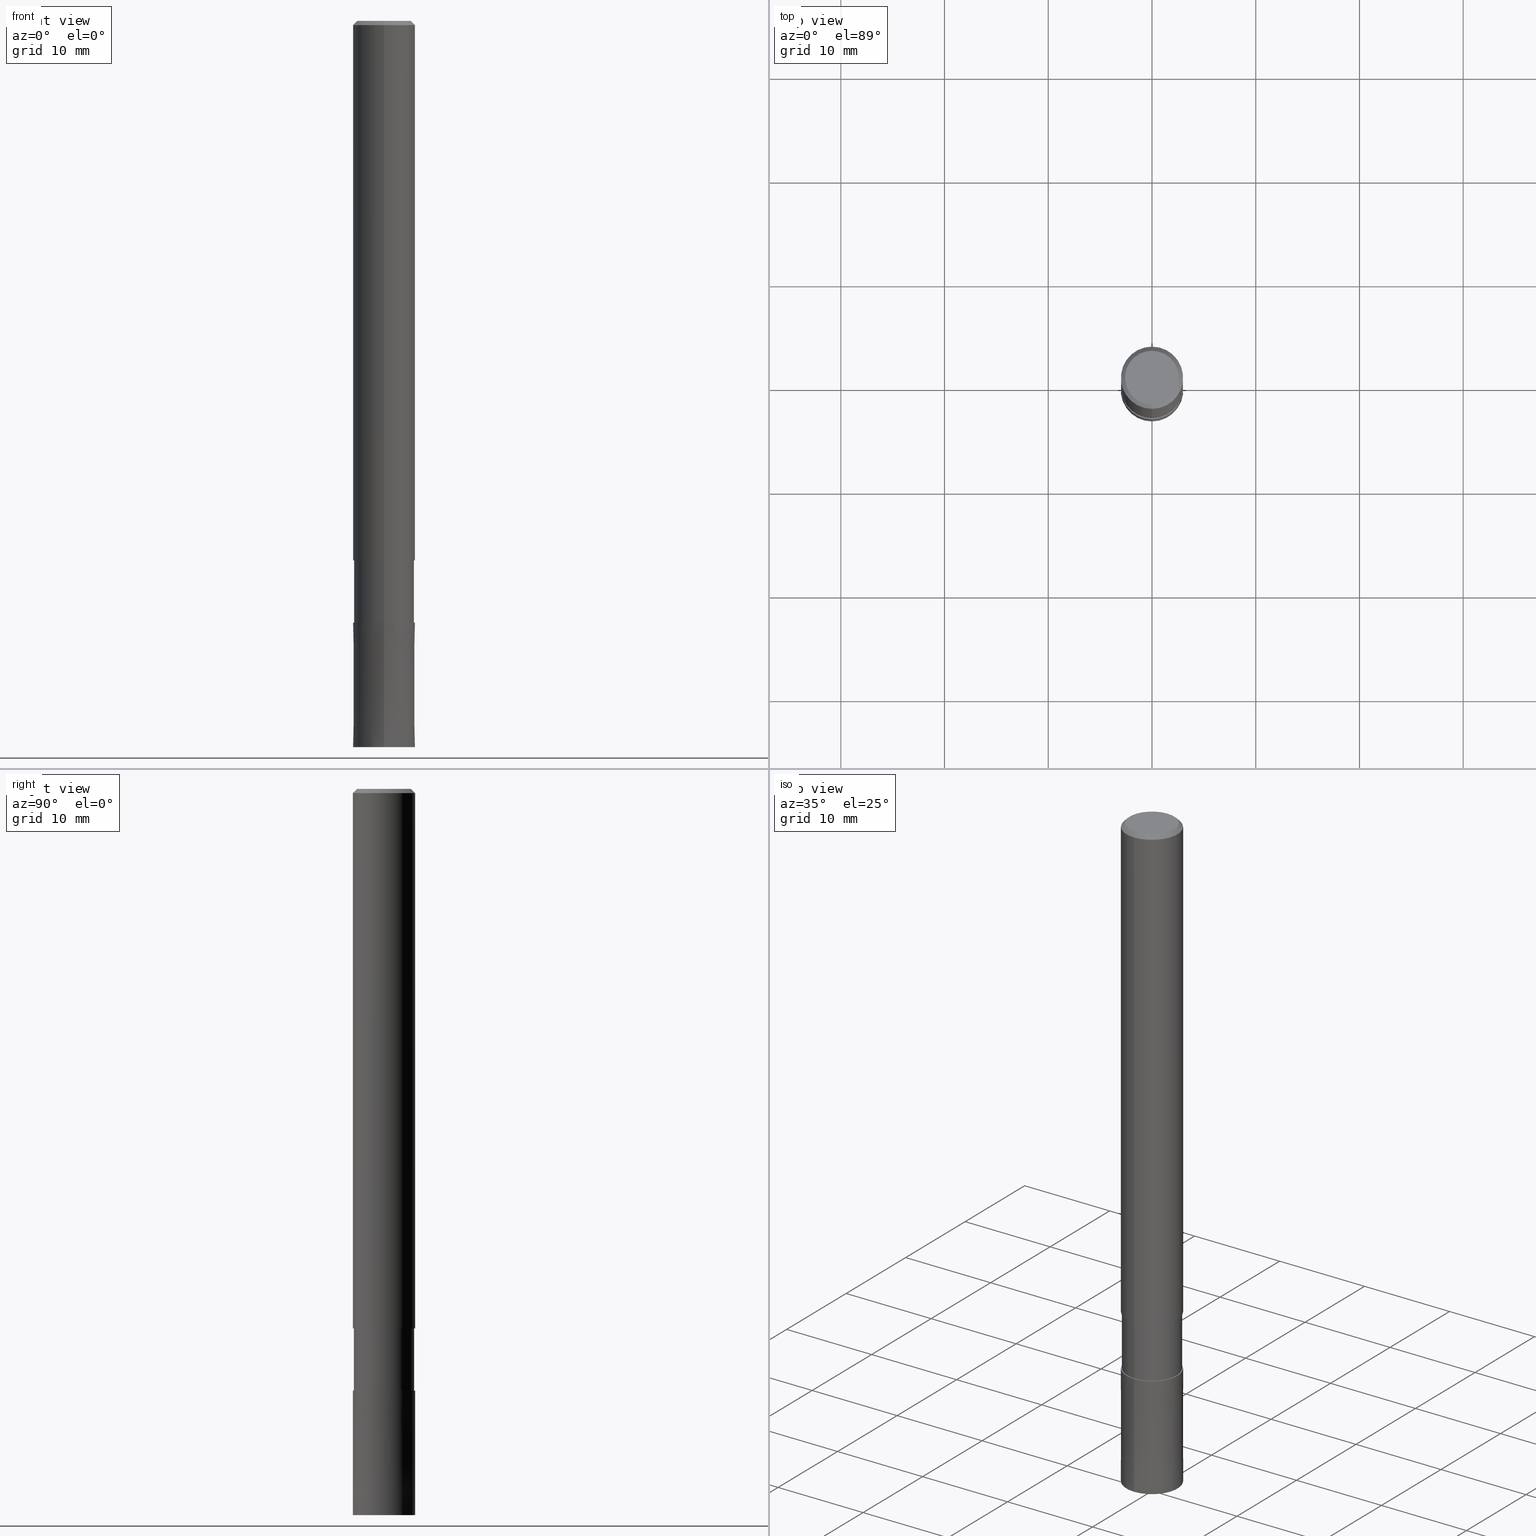
[diagram: canonical four-view strip — front | top / right | iso, engineering-drawing reading convention]
A machine part, canonical four-view strip (front | top / right | iso — engineering-drawing reading convention). The complete STEP part file that produces these views, byte-faithful:
ISO-10303-21;
HEADER;
FILE_DESCRIPTION(('no description'),'unknown implementation level');
FILE_NAME('DLC-AZS3060-180-Huellk.stp','  ',('CIMSOURCE GmbH'),('CADClick - KiM GmbH - www.kimweb.de'),'unknown preprocess','ACIS','unknown authorization');
FILE_SCHEMA(('automotive_design'));
ENDSEC;
DATA;
#1=MECHANICAL_DESIGN_GEOMETRIC_PRESENTATION_REPRESENTATION(' ',(#14,#15,#16,#17,#18,#19,#20,#21,#22,#23,#24,#25,#26,#27,#28,#29,#30,#31,#32,#33,#34,#35,#36,#37,#38,#39,#40,#41,#42,#43,#44,#45,#46,#47,#48,#49,#50,#51,#52,#53,#54,#55,#56,#57,#58,#59,#60,#61,#62,#63,#64),#10);
#2=PRODUCT_DEFINITION_CONTEXT('',#65,'design');
#3=APPLICATION_PROTOCOL_DEFINITION('INTERNATIONAL STANDARD','automotive_design',1994,#65);
#4=PRODUCT_CATEGORY_RELATIONSHIP('NONE','NONE',#66,#67);
#5=SHAPE_DEFINITION_REPRESENTATION(#68,#69);
#6=PRODUCT_DEFINITION_CONTEXT('',#70,'design');
#7=APPLICATION_PROTOCOL_DEFINITION('INTERNATIONAL STANDARD','automotive_design',1994,#70);
#8=PRODUCT_CATEGORY_RELATIONSHIP('NONE','NONE',#71,#72);
#9=SHAPE_DEFINITION_REPRESENTATION(#73,#74);
#10= (GEOMETRIC_REPRESENTATION_CONTEXT(3)GLOBAL_UNCERTAINTY_ASSIGNED_CONTEXT((#77))GLOBAL_UNIT_ASSIGNED_CONTEXT((#79,#80,#81))REPRESENTATION_CONTEXT('NONE','WORKSPACE'));
#14=STYLED_ITEM('',(#83),#84);
#15=STYLED_ITEM('',(#85),#86);
#16=STYLED_ITEM('',(#87),#88);
#17=STYLED_ITEM('',(#89),#90);
#18=STYLED_ITEM('',(#91),#92);
#19=STYLED_ITEM('',(#93),#94);
#20=STYLED_ITEM('',(#95),#96);
#21=STYLED_ITEM('',(#97),#98);
#22=STYLED_ITEM('',(#99),#100);
#23=STYLED_ITEM('',(#101),#102);
#24=STYLED_ITEM('',(#103),#104);
#25=STYLED_ITEM('',(#105),#106);
#26=STYLED_ITEM('',(#107),#108);
#27=STYLED_ITEM('',(#109),#110);
#28=STYLED_ITEM('',(#111),#112);
#29=STYLED_ITEM('',(#113),#114);
#30=STYLED_ITEM('',(#115),#116);
#31=STYLED_ITEM('',(#117),#118);
#32=STYLED_ITEM('',(#119),#120);
#33=STYLED_ITEM('',(#121),#122);
#34=STYLED_ITEM('',(#123),#124);
#35=STYLED_ITEM('',(#125),#126);
#36=STYLED_ITEM('',(#127),#128);
#37=STYLED_ITEM('',(#129),#130);
#38=STYLED_ITEM('',(#131),#132);
#39=STYLED_ITEM('',(#133),#134);
#40=STYLED_ITEM('',(#135),#136);
#41=STYLED_ITEM('',(#137),#138);
#42=STYLED_ITEM('',(#139),#140);
#43=STYLED_ITEM('',(#141),#142);
#44=STYLED_ITEM('',(#143),#144);
#45=STYLED_ITEM('',(#145),#146);
#46=STYLED_ITEM('',(#147),#148);
#47=STYLED_ITEM('',(#149),#150);
#48=STYLED_ITEM('',(#151),#152);
#49=STYLED_ITEM('',(#153),#154);
#50=STYLED_ITEM('',(#155),#156);
#51=STYLED_ITEM('',(#157),#158);
#52=STYLED_ITEM('',(#159),#160);
#53=STYLED_ITEM('',(#161),#162);
#54=STYLED_ITEM('',(#163),#164);
#55=STYLED_ITEM('',(#165),#166);
#56=STYLED_ITEM('',(#167),#168);
#57=STYLED_ITEM('',(#169),#170);
#58=STYLED_ITEM('',(#171),#172);
#59=STYLED_ITEM('',(#173),#174);
#60=STYLED_ITEM('',(#175),#176);
#61=STYLED_ITEM('',(#177),#178);
#62=STYLED_ITEM('',(#179),#180);
#63=STYLED_ITEM('',(#181),#182);
#64=STYLED_ITEM('',(#183),#184);
#65=APPLICATION_CONTEXT(' ');
#66=PRODUCT_CATEGORY('part','NONE');
#67=PRODUCT_RELATED_PRODUCT_CATEGORY('detail',' ',(#185));
#68=PRODUCT_DEFINITION_SHAPE('NONE','NONE',#186);
#69=ADVANCED_BREP_SHAPE_REPRESENTATION('1',(#182,#187),#10);
#70=APPLICATION_CONTEXT(' ');
#71=PRODUCT_CATEGORY('part','NONE');
#72=PRODUCT_RELATED_PRODUCT_CATEGORY('detail',' ',(#188));
#73=PRODUCT_DEFINITION_SHAPE('NONE','NONE',#189);
#74=ADVANCED_BREP_SHAPE_REPRESENTATION('2',(#178,#190),#10);
#77=UNCERTAINTY_MEASURE_WITH_UNIT(LENGTH_MEASURE(1.0E-006),#79,'','');
#79= (CONVERSION_BASED_UNIT('MILLIMETRE',#193)LENGTH_UNIT()NAMED_UNIT(#196));
#80= (NAMED_UNIT(#198)PLANE_ANGLE_UNIT()SI_UNIT($,.RADIAN.));
#81= (NAMED_UNIT(#198)SOLID_ANGLE_UNIT()SI_UNIT($,.STERADIAN.));
#83=PRESENTATION_STYLE_ASSIGNMENT((#204));
#84=EDGE_CURVE('',#102,#168,#205,.T.);
#85=PRESENTATION_STYLE_ASSIGNMENT((#206));
#86=ADVANCED_FACE('',(#207),#208,.T.);
#87=PRESENTATION_STYLE_ASSIGNMENT((#209));
#88=ADVANCED_FACE('',(#210),#211,.T.);
#89=PRESENTATION_STYLE_ASSIGNMENT((#212));
#90=ADVANCED_FACE('',(#213),#214,.T.);
#91=PRESENTATION_STYLE_ASSIGNMENT((#215));
#92=EDGE_CURVE('',#176,#142,#216,.T.);
#93=PRESENTATION_STYLE_ASSIGNMENT((#217));
#94=EDGE_CURVE('',#118,#140,#218,.T.);
#95=PRESENTATION_STYLE_ASSIGNMENT((#219));
#96=EDGE_CURVE('',#110,#134,#220,.T.);
#97=PRESENTATION_STYLE_ASSIGNMENT((#221));
#98=EDGE_CURVE('',#140,#118,#222,.T.);
#99=PRESENTATION_STYLE_ASSIGNMENT((#223));
#100=ADVANCED_FACE('',(#224),#225,.T.);
#101=PRESENTATION_STYLE_ASSIGNMENT((#226));
#102=VERTEX_POINT('',#227);
#103=PRESENTATION_STYLE_ASSIGNMENT((#228));
#104=EDGE_CURVE('',#168,#102,#229,.T.);
#105=PRESENTATION_STYLE_ASSIGNMENT((#230));
#106=ADVANCED_FACE('',(#231),#232,.T.);
#107=PRESENTATION_STYLE_ASSIGNMENT((#233));
#108=VERTEX_POINT('',#234);
#109=PRESENTATION_STYLE_ASSIGNMENT((#235));
#110=VERTEX_POINT('',#236);
#111=PRESENTATION_STYLE_ASSIGNMENT((#237));
#112=ADVANCED_FACE('',(#238),#239,.T.);
#113=PRESENTATION_STYLE_ASSIGNMENT((#240));
#114=EDGE_CURVE('',#108,#176,#241,.T.);
#115=PRESENTATION_STYLE_ASSIGNMENT((#242));
#116=EDGE_CURVE('',#180,#108,#243,.T.);
#117=PRESENTATION_STYLE_ASSIGNMENT((#244));
#118=VERTEX_POINT('',#245);
#119=PRESENTATION_STYLE_ASSIGNMENT((#246));
#120=EDGE_CURVE('',#118,#134,#247,.T.);
#121=PRESENTATION_STYLE_ASSIGNMENT((#248));
#122=VERTEX_POINT('',#249);
#123=PRESENTATION_STYLE_ASSIGNMENT((#250));
#124=EDGE_CURVE('',#134,#110,#251,.T.);
#125=PRESENTATION_STYLE_ASSIGNMENT((#252));
#126=EDGE_CURVE('',#108,#180,#253,.T.);
#127=PRESENTATION_STYLE_ASSIGNMENT((#254));
#128=ADVANCED_FACE('',(#255),#256,.T.);
#129=PRESENTATION_STYLE_ASSIGNMENT((#257));
#130=VERTEX_POINT('',#258);
#131=PRESENTATION_STYLE_ASSIGNMENT((#259));
#132=EDGE_CURVE('',#154,#146,#260,.T.);
#133=PRESENTATION_STYLE_ASSIGNMENT((#261));
#134=VERTEX_POINT('',#262);
#135=PRESENTATION_STYLE_ASSIGNMENT((#263));
#136=EDGE_CURVE('',#142,#180,#264,.T.);
#137=PRESENTATION_STYLE_ASSIGNMENT((#265));
#138=EDGE_CURVE('',#146,#102,#266,.T.);
#139=PRESENTATION_STYLE_ASSIGNMENT((#267));
#140=VERTEX_POINT('',#268);
#141=PRESENTATION_STYLE_ASSIGNMENT((#269));
#142=VERTEX_POINT('',#270);
#143=PRESENTATION_STYLE_ASSIGNMENT((#271));
#144=ADVANCED_FACE('',(#272),#273,.T.);
#145=PRESENTATION_STYLE_ASSIGNMENT((#274));
#146=VERTEX_POINT('',#275);
#147=PRESENTATION_STYLE_ASSIGNMENT((#276));
#148=EDGE_CURVE('',#110,#140,#277,.T.);
#149=PRESENTATION_STYLE_ASSIGNMENT((#278));
#150=ADVANCED_FACE('',(#279,#280),#281,.T.);
#151=PRESENTATION_STYLE_ASSIGNMENT((#282));
#152=ADVANCED_FACE('',(#283),#284,.T.);
#153=PRESENTATION_STYLE_ASSIGNMENT((#285));
#154=VERTEX_POINT('',#286);
#155=PRESENTATION_STYLE_ASSIGNMENT((#287));
#156=EDGE_CURVE('',#168,#154,#288,.T.);
#157=PRESENTATION_STYLE_ASSIGNMENT((#289));
#158=ADVANCED_FACE('',(#290),#291,.T.);
#159=PRESENTATION_STYLE_ASSIGNMENT((#292));
#160=EDGE_CURVE('',#130,#110,#293,.T.);
#161=PRESENTATION_STYLE_ASSIGNMENT((#294));
#162=EDGE_CURVE('',#130,#122,#295,.T.);
#163=PRESENTATION_STYLE_ASSIGNMENT((#296));
#164=EDGE_CURVE('',#122,#130,#297,.T.);
#165=PRESENTATION_STYLE_ASSIGNMENT((#298));
#166=ADVANCED_FACE('',(#299),#300,.T.);
#167=PRESENTATION_STYLE_ASSIGNMENT((#301));
#168=VERTEX_POINT('',#302);
#169=PRESENTATION_STYLE_ASSIGNMENT((#303));
#170=ADVANCED_FACE('',(#304),#305,.T.);
#171=PRESENTATION_STYLE_ASSIGNMENT((#306));
#172=EDGE_CURVE('',#146,#154,#307,.T.);
#173=PRESENTATION_STYLE_ASSIGNMENT((#308));
#174=EDGE_CURVE('',#134,#122,#309,.T.);
#175=PRESENTATION_STYLE_ASSIGNMENT((#310));
#176=VERTEX_POINT('',#311);
#177=PRESENTATION_STYLE_ASSIGNMENT((#312));
#178=MANIFOLD_SOLID_BREP('2',#313);
#179=PRESENTATION_STYLE_ASSIGNMENT((#314));
#180=VERTEX_POINT('',#315);
#181=PRESENTATION_STYLE_ASSIGNMENT((#316));
#182=MANIFOLD_SOLID_BREP('1',#317);
#183=PRESENTATION_STYLE_ASSIGNMENT((#318));
#184=EDGE_CURVE('',#142,#176,#319,.T.);
#185=PRODUCT('1','1','PART-1-DESC',(#320));
#186=PRODUCT_DEFINITION('NONE','NONE',#321,#2);
#187=AXIS2_PLACEMENT_3D('',#322,#323,#324);
#188=PRODUCT('2','2','PART-2-DESC',(#325));
#189=PRODUCT_DEFINITION('NONE','NONE',#326,#6);
#190=AXIS2_PLACEMENT_3D('',#327,#328,#329);
#193=LENGTH_MEASURE_WITH_UNIT(LENGTH_MEASURE(1.0),#330);
#196=DIMENSIONAL_EXPONENTS(1.0,0.0,0.0,0.0,0.0,0.0,0.0);
#198=DIMENSIONAL_EXPONENTS(0.0,0.0,0.0,0.0,0.0,0.0,0.0);
#204=CURVE_STYLE('',#331,POSITIVE_LENGTH_MEASURE(1.0E-006),#332);
#205=CIRCLE('',#333,2.89995);
#206=SURFACE_STYLE_USAGE(.BOTH.,#334);
#207=FACE_OUTER_BOUND('',#335,.T.);
#208=CYLINDRICAL_SURFACE('',#336,2.89995);
#209=SURFACE_STYLE_USAGE(.BOTH.,#337);
#210=FACE_OUTER_BOUND('',#338,.T.);
#211=CONICAL_SURFACE('',#339,2.8,0.78539816339745);
#212=SURFACE_STYLE_USAGE(.BOTH.,#340);
#213=FACE_OUTER_BOUND('',#341,.T.);
#214=PLANE('',#342);
#215=CURVE_STYLE('',#343,POSITIVE_LENGTH_MEASURE(1.0E-006),#344);
#216=CIRCLE('',#345,2.9999);
#217=CURVE_STYLE('',#346,POSITIVE_LENGTH_MEASURE(1.0E-006),#347);
#218=CIRCLE('',#348,3.0);
#219=CURVE_STYLE('',#349,POSITIVE_LENGTH_MEASURE(1.0E-006),#350);
#220=CIRCLE('',#351,3.0);
#221=CURVE_STYLE('',#352,POSITIVE_LENGTH_MEASURE(1.0E-006),#353);
#222=CIRCLE('',#354,3.0);
#223=SURFACE_STYLE_USAGE(.BOTH.,#355);
#224=FACE_OUTER_BOUND('',#356,.T.);
#225=CONICAL_SURFACE('',#357,2.99995,8.33333333315802E-006);
#226=POINT_STYLE(' ',#358,POSITIVE_LENGTH_MEASURE(1.0E-006),#359);
#227=CARTESIAN_POINT('',(0.0,2.89995,-58.0));
#228=CURVE_STYLE('',#360,POSITIVE_LENGTH_MEASURE(1.0E-006),#361);
#229=CIRCLE('',#362,2.89995);
#230=SURFACE_STYLE_USAGE(.BOTH.,#363);
#231=FACE_OUTER_BOUND('',#364,.T.);
#232=PLANE('',#365);
#233=POINT_STYLE(' ',#366,POSITIVE_LENGTH_MEASURE(1.0E-006),#367);
#234=CARTESIAN_POINT('',(3.67381906146713E-016,-3.0,-70.0));
#235=POINT_STYLE(' ',#368,POSITIVE_LENGTH_MEASURE(1.0E-006),#369);
#236=CARTESIAN_POINT('',(0.0,3.0,-0.399999999999999));
#237=SURFACE_STYLE_USAGE(.BOTH.,#370);
#238=FACE_OUTER_BOUND('',#371,.T.);
#239=CYLINDRICAL_SURFACE('',#372,3.0);
#240=CURVE_STYLE('',#373,POSITIVE_LENGTH_MEASURE(1.0E-006),#374);
#241=LINE('',#375,#376);
#242=CURVE_STYLE('',#377,POSITIVE_LENGTH_MEASURE(1.0E-006),#378);
#243=CIRCLE('',#379,3.0);
#244=POINT_STYLE(' ',#380,POSITIVE_LENGTH_MEASURE(1.0E-006),#381);
#245=CARTESIAN_POINT('',(3.67381906146713E-016,-3.0,-52.0));
#246=CURVE_STYLE('',#382,POSITIVE_LENGTH_MEASURE(1.0E-006),#383);
#247=LINE('',#384,#385);
#248=POINT_STYLE(' ',#386,POSITIVE_LENGTH_MEASURE(1.0E-006),#387);
#249=CARTESIAN_POINT('',(3.18397651993818E-016,-2.6,0.0));
#250=CURVE_STYLE('',#388,POSITIVE_LENGTH_MEASURE(1.0E-006),#389);
#251=CIRCLE('',#390,3.0);
#252=CURVE_STYLE('',#391,POSITIVE_LENGTH_MEASURE(1.0E-006),#392);
#253=CIRCLE('',#393,3.0);
#254=SURFACE_STYLE_USAGE(.BOTH.,#394);
#255=FACE_OUTER_BOUND('',#395,.T.);
#256=CYLINDRICAL_SURFACE('',#396,2.89995);
#257=POINT_STYLE(' ',#397,POSITIVE_LENGTH_MEASURE(1.0E-006),#398);
#258=CARTESIAN_POINT('',(0.0,2.6,0.0));
#259=CURVE_STYLE('',#399,POSITIVE_LENGTH_MEASURE(1.0E-006),#400);
#260=CIRCLE('',#401,2.89995);
#261=POINT_STYLE(' ',#402,POSITIVE_LENGTH_MEASURE(1.0E-006),#403);
#262=CARTESIAN_POINT('',(3.67381906146713E-016,-3.0,-0.399999999999999));
#263=CURVE_STYLE('',#404,POSITIVE_LENGTH_MEASURE(1.0E-006),#405);
#264=LINE('',#406,#407);
#265=CURVE_STYLE('',#408,POSITIVE_LENGTH_MEASURE(1.0E-006),#409);
#266=LINE('',#410,#411);
#267=POINT_STYLE(' ',#412,POSITIVE_LENGTH_MEASURE(1.0E-006),#413);
#268=CARTESIAN_POINT('',(0.0,3.0,-52.0));
#269=POINT_STYLE(' ',#414,POSITIVE_LENGTH_MEASURE(1.0E-006),#415);
#270=CARTESIAN_POINT('',(0.0,2.9999,-58.0));
#271=SURFACE_STYLE_USAGE(.BOTH.,#416);
#272=FACE_OUTER_BOUND('',#417,.T.);
#273=CYLINDRICAL_SURFACE('',#418,3.0);
#274=POINT_STYLE(' ',#419,POSITIVE_LENGTH_MEASURE(1.0E-006),#420);
#275=CARTESIAN_POINT('',(0.0,2.89995,-52.0));
#276=CURVE_STYLE('',#421,POSITIVE_LENGTH_MEASURE(1.0E-006),#422);
#277=LINE('',#423,#424);
#278=SURFACE_STYLE_USAGE(.BOTH.,#425);
#279=FACE_OUTER_BOUND('',#426,.T.);
#280=FACE_BOUND('',#427,.T.);
#281=PLANE('',#428);
#282=SURFACE_STYLE_USAGE(.BOTH.,#429);
#283=FACE_OUTER_BOUND('',#430,.T.);
#284=PLANE('',#431);
#285=POINT_STYLE(' ',#432,POSITIVE_LENGTH_MEASURE(1.0E-006),#433);
#286=CARTESIAN_POINT('',(3.5512971957672E-016,-2.89995,-52.0));
#287=CURVE_STYLE('',#434,POSITIVE_LENGTH_MEASURE(1.0E-006),#435);
#288=LINE('',#436,#437);
#289=SURFACE_STYLE_USAGE(.BOTH.,#438);
#290=FACE_OUTER_BOUND('',#439,.T.);
#291=CONICAL_SURFACE('',#440,2.8,0.78539816339745);
#292=CURVE_STYLE('',#441,POSITIVE_LENGTH_MEASURE(1.0E-006),#442);
#293=LINE('',#443,#444);
#294=CURVE_STYLE('',#445,POSITIVE_LENGTH_MEASURE(1.0E-006),#446);
#295=CIRCLE('',#447,2.6);
#296=CURVE_STYLE('',#448,POSITIVE_LENGTH_MEASURE(1.0E-006),#449);
#297=CIRCLE('',#450,2.6);
#298=SURFACE_STYLE_USAGE(.BOTH.,#451);
#299=FACE_OUTER_BOUND('',#452,.T.);
#300=CONICAL_SURFACE('',#453,2.99995,8.33333333315802E-006);
#301=POINT_STYLE(' ',#454,POSITIVE_LENGTH_MEASURE(1.0E-006),#455);
#302=CARTESIAN_POINT('',(3.5512971957672E-016,-2.89995,-58.0));
#303=SURFACE_STYLE_USAGE(.BOTH.,#456);
#304=FACE_OUTER_BOUND('',#457,.T.);
#305=PLANE('',#458);
#306=CURVE_STYLE('',#459,POSITIVE_LENGTH_MEASURE(1.0E-006),#460);
#307=CIRCLE('',#461,2.89995);
#308=CURVE_STYLE('',#462,POSITIVE_LENGTH_MEASURE(1.0E-006),#463);
#309=LINE('',#464,#465);
#310=POINT_STYLE(' ',#466,POSITIVE_LENGTH_MEASURE(1.0E-006),#467);
#311=CARTESIAN_POINT('',(3.67369660083175E-016,-2.9999,-58.0));
#312=SURFACE_STYLE_USAGE(.BOTH.,#468);
#313=CLOSED_SHELL('',(#100,#170,#166,#106));
#314=POINT_STYLE(' ',#469,POSITIVE_LENGTH_MEASURE(1.0E-006),#470);
#315=CARTESIAN_POINT('',(0.0,3.0,-70.0));
#316=SURFACE_STYLE_USAGE(.BOTH.,#471);
#317=CLOSED_SHELL('',(#86,#144,#88,#150,#90,#158,#112,#128,#152));
#318=CURVE_STYLE('',#472,POSITIVE_LENGTH_MEASURE(1.0E-006),#473);
#319=CIRCLE('',#474,2.9999);
#320=PRODUCT_CONTEXT('',#65,'mechanical');
#321=PRODUCT_DEFINITION_FORMATION_WITH_SPECIFIED_SOURCE(' ','NONE',#185,.NOT_KNOWN.);
#322=CARTESIAN_POINT('',(0.0,0.0,0.0));
#323=DIRECTION('',(0.0,0.0,1.0));
#324=DIRECTION('',(1.0,0.0,0.0));
#325=PRODUCT_CONTEXT('',#70,'mechanical');
#326=PRODUCT_DEFINITION_FORMATION_WITH_SPECIFIED_SOURCE(' ','NONE',#188,.NOT_KNOWN.);
#327=CARTESIAN_POINT('',(0.0,0.0,0.0));
#328=DIRECTION('',(0.0,0.0,1.0));
#329=DIRECTION('',(1.0,0.0,0.0));
#330= (NAMED_UNIT(#196)LENGTH_UNIT()SI_UNIT(.MILLI.,.METRE.));
#331=DRAUGHTING_PRE_DEFINED_CURVE_FONT('continuous');
#332=COLOUR_RGB('',0.498039215803146,0.498039215803146,0.498039215803146);
#333=AXIS2_PLACEMENT_3D('',#476,#477,#478);
#334=SURFACE_SIDE_STYLE('',(#479));
#335=EDGE_LOOP('',(#480,#481,#482,#483));
#336=AXIS2_PLACEMENT_3D('',#484,#485,#486);
#337=SURFACE_SIDE_STYLE('',(#487));
#338=EDGE_LOOP('',(#488,#489,#490,#491));
#339=AXIS2_PLACEMENT_3D('',#492,#493,#494);
#340=SURFACE_SIDE_STYLE('',(#495));
#341=EDGE_LOOP('',(#496,#497));
#342=AXIS2_PLACEMENT_3D('',#498,#499,#500);
#343=DRAUGHTING_PRE_DEFINED_CURVE_FONT('continuous');
#344=COLOUR_RGB('',0.800000011920929,0.800000011920929,0.800000011920929);
#345=AXIS2_PLACEMENT_3D('',#501,#502,#503);
#346=DRAUGHTING_PRE_DEFINED_CURVE_FONT('continuous');
#347=COLOUR_RGB('',0.498039215803146,0.498039215803146,0.498039215803146);
#348=AXIS2_PLACEMENT_3D('',#504,#505,#506);
#349=DRAUGHTING_PRE_DEFINED_CURVE_FONT('continuous');
#350=COLOUR_RGB('',0.498039215803146,0.498039215803146,0.498039215803146);
#351=AXIS2_PLACEMENT_3D('',#507,#508,#509);
#352=DRAUGHTING_PRE_DEFINED_CURVE_FONT('continuous');
#353=COLOUR_RGB('',0.498039215803146,0.498039215803146,0.498039215803146);
#354=AXIS2_PLACEMENT_3D('',#510,#511,#512);
#355=SURFACE_SIDE_STYLE('',(#513));
#356=EDGE_LOOP('',(#514,#515,#516,#517));
#357=AXIS2_PLACEMENT_3D('',#518,#519,#520);
#358=PRE_DEFINED_MARKER('');
#359=COLOUR_RGB('',0.498039215803146,0.498039215803146,0.498039215803146);
#360=DRAUGHTING_PRE_DEFINED_CURVE_FONT('continuous');
#361=COLOUR_RGB('',0.498039215803146,0.498039215803146,0.498039215803146);
#362=AXIS2_PLACEMENT_3D('',#521,#522,#523);
#363=SURFACE_SIDE_STYLE('',(#524));
#364=EDGE_LOOP('',(#525,#526));
#365=AXIS2_PLACEMENT_3D('',#527,#528,#529);
#366=PRE_DEFINED_MARKER('');
#367=COLOUR_RGB('',0.800000011920929,0.800000011920929,0.800000011920929);
#368=PRE_DEFINED_MARKER('');
#369=COLOUR_RGB('',0.498039215803146,0.498039215803146,0.498039215803146);
#370=SURFACE_SIDE_STYLE('',(#530));
#371=EDGE_LOOP('',(#531,#532,#533,#534));
#372=AXIS2_PLACEMENT_3D('',#535,#536,#537);
#373=DRAUGHTING_PRE_DEFINED_CURVE_FONT('continuous');
#374=COLOUR_RGB('',0.800000011920929,0.800000011920929,0.800000011920929);
#375=CARTESIAN_POINT('',(3.67375783114944E-016,-2.99995,-64.0));
#376=VECTOR('',#538,1.0);
#377=DRAUGHTING_PRE_DEFINED_CURVE_FONT('continuous');
#378=COLOUR_RGB('',0.800000011920929,0.800000011920929,0.800000011920929);
#379=AXIS2_PLACEMENT_3D('',#539,#540,#541);
#380=PRE_DEFINED_MARKER('');
#381=COLOUR_RGB('',0.498039215803146,0.498039215803146,0.498039215803146);
#382=DRAUGHTING_PRE_DEFINED_CURVE_FONT('continuous');
#383=COLOUR_RGB('',0.498039215803146,0.498039215803146,0.498039215803146);
#384=CARTESIAN_POINT('',(3.67381906146713E-016,-3.0,-26.2));
#385=VECTOR('',#542,1.0);
#386=PRE_DEFINED_MARKER('');
#387=COLOUR_RGB('',0.498039215803146,0.498039215803146,0.498039215803146);
#388=DRAUGHTING_PRE_DEFINED_CURVE_FONT('continuous');
#389=COLOUR_RGB('',0.498039215803146,0.498039215803146,0.498039215803146);
#390=AXIS2_PLACEMENT_3D('',#543,#544,#545);
#391=DRAUGHTING_PRE_DEFINED_CURVE_FONT('continuous');
#392=COLOUR_RGB('',0.800000011920929,0.800000011920929,0.800000011920929);
#393=AXIS2_PLACEMENT_3D('',#546,#547,#548);
#394=SURFACE_SIDE_STYLE('',(#549));
#395=EDGE_LOOP('',(#550,#551,#552,#553));
#396=AXIS2_PLACEMENT_3D('',#554,#555,#556);
#397=PRE_DEFINED_MARKER('');
#398=COLOUR_RGB('',0.498039215803146,0.498039215803146,0.498039215803146);
#399=DRAUGHTING_PRE_DEFINED_CURVE_FONT('continuous');
#400=COLOUR_RGB('',0.498039215803146,0.498039215803146,0.498039215803146);
#401=AXIS2_PLACEMENT_3D('',#557,#558,#559);
#402=PRE_DEFINED_MARKER('');
#403=COLOUR_RGB('',0.498039215803146,0.498039215803146,0.498039215803146);
#404=DRAUGHTING_PRE_DEFINED_CURVE_FONT('continuous');
#405=COLOUR_RGB('',0.800000011920929,0.800000011920929,0.800000011920929);
#406=CARTESIAN_POINT('',(-3.67375783114944E-016,2.99995,-64.0));
#407=VECTOR('',#560,1.0);
#408=DRAUGHTING_PRE_DEFINED_CURVE_FONT('continuous');
#409=COLOUR_RGB('',0.498039215803146,0.498039215803146,0.498039215803146);
#410=CARTESIAN_POINT('',(-3.5512971957672E-016,2.89995,-55.0));
#411=VECTOR('',#561,1.0);
#412=PRE_DEFINED_MARKER('');
#413=COLOUR_RGB('',0.498039215803146,0.498039215803146,0.498039215803146);
#414=PRE_DEFINED_MARKER('');
#415=COLOUR_RGB('',0.800000011920929,0.800000011920929,0.800000011920929);
#416=SURFACE_SIDE_STYLE('',(#562));
#417=EDGE_LOOP('',(#563,#564,#565,#566));
#418=AXIS2_PLACEMENT_3D('',#567,#568,#569);
#419=PRE_DEFINED_MARKER('');
#420=COLOUR_RGB('',0.498039215803146,0.498039215803146,0.498039215803146);
#421=DRAUGHTING_PRE_DEFINED_CURVE_FONT('continuous');
#422=COLOUR_RGB('',0.498039215803146,0.498039215803146,0.498039215803146);
#423=CARTESIAN_POINT('',(-3.67381906146713E-016,3.0,-26.2));
#424=VECTOR('',#570,1.0);
#425=SURFACE_SIDE_STYLE('',(#571));
#426=EDGE_LOOP('',(#572,#573));
#427=EDGE_LOOP('',(#574,#575));
#428=AXIS2_PLACEMENT_3D('',#576,#577,#578);
#429=SURFACE_SIDE_STYLE('',(#579));
#430=EDGE_LOOP('',(#580,#581));
#431=AXIS2_PLACEMENT_3D('',#582,#583,#584);
#432=PRE_DEFINED_MARKER('');
#433=COLOUR_RGB('',0.498039215803146,0.498039215803146,0.498039215803146);
#434=DRAUGHTING_PRE_DEFINED_CURVE_FONT('continuous');
#435=COLOUR_RGB('',0.498039215803146,0.498039215803146,0.498039215803146);
#436=CARTESIAN_POINT('',(3.5512971957672E-016,-2.89995,-55.0));
#437=VECTOR('',#585,1.0);
#438=SURFACE_SIDE_STYLE('',(#586));
#439=EDGE_LOOP('',(#587,#588,#589,#590));
#440=AXIS2_PLACEMENT_3D('',#591,#592,#593);
#441=DRAUGHTING_PRE_DEFINED_CURVE_FONT('continuous');
#442=COLOUR_RGB('',0.498039215803146,0.498039215803146,0.498039215803146);
#443=CARTESIAN_POINT('',(-3.42889779070266E-016,2.8,-0.200000000000003));
#444=VECTOR('',#594,1.0);
#445=DRAUGHTING_PRE_DEFINED_CURVE_FONT('continuous');
#446=COLOUR_RGB('',0.498039215803146,0.498039215803146,0.498039215803146);
#447=AXIS2_PLACEMENT_3D('',#595,#596,#597);
#448=DRAUGHTING_PRE_DEFINED_CURVE_FONT('continuous');
#449=COLOUR_RGB('',0.498039215803146,0.498039215803146,0.498039215803146);
#450=AXIS2_PLACEMENT_3D('',#598,#599,#600);
#451=SURFACE_SIDE_STYLE('',(#601));
#452=EDGE_LOOP('',(#602,#603,#604,#605));
#453=AXIS2_PLACEMENT_3D('',#606,#607,#608);
#454=PRE_DEFINED_MARKER('');
#455=COLOUR_RGB('',0.498039215803146,0.498039215803146,0.498039215803146);
#456=SURFACE_SIDE_STYLE('',(#609));
#457=EDGE_LOOP('',(#610,#611));
#458=AXIS2_PLACEMENT_3D('',#612,#613,#614);
#459=DRAUGHTING_PRE_DEFINED_CURVE_FONT('continuous');
#460=COLOUR_RGB('',0.498039215803146,0.498039215803146,0.498039215803146);
#461=AXIS2_PLACEMENT_3D('',#615,#616,#617);
#462=DRAUGHTING_PRE_DEFINED_CURVE_FONT('continuous');
#463=COLOUR_RGB('',0.498039215803146,0.498039215803146,0.498039215803146);
#464=CARTESIAN_POINT('',(3.42889779070266E-016,-2.8,-0.200000000000003));
#465=VECTOR('',#618,1.0);
#466=PRE_DEFINED_MARKER('');
#467=COLOUR_RGB('',0.800000011920929,0.800000011920929,0.800000011920929);
#468=SURFACE_SIDE_STYLE('',(#619));
#469=PRE_DEFINED_MARKER('');
#470=COLOUR_RGB('',0.800000011920929,0.800000011920929,0.800000011920929);
#471=SURFACE_SIDE_STYLE('',(#620));
#472=DRAUGHTING_PRE_DEFINED_CURVE_FONT('continuous');
#473=COLOUR_RGB('',0.800000011920929,0.800000011920929,0.800000011920929);
#474=AXIS2_PLACEMENT_3D('',#621,#622,#623);
#476=CARTESIAN_POINT('',(0.0,0.0,-58.0));
#477=DIRECTION('',(0.0,0.0,-1.0));
#478=DIRECTION('',(0.0,1.0,0.0));
#479=SURFACE_STYLE_FILL_AREA(#624);
#480=ORIENTED_EDGE('',*,*,#138,.F.);
#481=ORIENTED_EDGE('',*,*,#172,.T.);
#482=ORIENTED_EDGE('',*,*,#156,.F.);
#483=ORIENTED_EDGE('',*,*,#84,.F.);
#484=CARTESIAN_POINT('',(0.0,0.0,-55.0));
#485=DIRECTION('',(-0.0,-0.0,1.0));
#486=DIRECTION('',(0.0,1.0,0.0));
#487=SURFACE_STYLE_FILL_AREA(#625);
#488=ORIENTED_EDGE('',*,*,#160,.F.);
#489=ORIENTED_EDGE('',*,*,#162,.T.);
#490=ORIENTED_EDGE('',*,*,#174,.F.);
#491=ORIENTED_EDGE('',*,*,#96,.F.);
#492=CARTESIAN_POINT('',(0.0,0.0,-0.200000000000003));
#493=DIRECTION('',(0.0,-0.0,-1.0));
#494=DIRECTION('',(0.0,1.0,0.0));
#495=SURFACE_STYLE_FILL_AREA(#626);
#496=ORIENTED_EDGE('',*,*,#162,.F.);
#497=ORIENTED_EDGE('',*,*,#164,.F.);
#498=CARTESIAN_POINT('',(0.0,1.3,0.0));
#499=DIRECTION('',(-0.0,0.0,1.0));
#500=DIRECTION('',(0.0,-1.0,0.0));
#501=CARTESIAN_POINT('',(0.0,0.0,-58.0));
#502=DIRECTION('',(0.0,0.0,-1.0));
#503=DIRECTION('',(0.0,1.0,0.0));
#504=CARTESIAN_POINT('',(0.0,0.0,-52.0));
#505=DIRECTION('',(0.0,0.0,-1.0));
#506=DIRECTION('',(0.0,1.0,0.0));
#507=CARTESIAN_POINT('',(0.0,0.0,-0.399999999999999));
#508=DIRECTION('',(0.0,0.0,-1.0));
#509=DIRECTION('',(0.0,1.0,0.0));
#510=CARTESIAN_POINT('',(0.0,0.0,-52.0));
#511=DIRECTION('',(0.0,0.0,-1.0));
#512=DIRECTION('',(0.0,1.0,0.0));
#513=SURFACE_STYLE_FILL_AREA(#627);
#514=ORIENTED_EDGE('',*,*,#136,.F.);
#515=ORIENTED_EDGE('',*,*,#184,.T.);
#516=ORIENTED_EDGE('',*,*,#114,.F.);
#517=ORIENTED_EDGE('',*,*,#116,.F.);
#518=CARTESIAN_POINT('',(0.0,0.0,-64.0));
#519=DIRECTION('',(0.0,-0.0,-1.0));
#520=DIRECTION('',(0.0,1.0,0.0));
#521=CARTESIAN_POINT('',(0.0,0.0,-58.0));
#522=DIRECTION('',(0.0,0.0,-1.0));
#523=DIRECTION('',(0.0,1.0,0.0));
#524=SURFACE_STYLE_FILL_AREA(#628);
#525=ORIENTED_EDGE('',*,*,#116,.T.);
#526=ORIENTED_EDGE('',*,*,#126,.T.);
#527=CARTESIAN_POINT('',(0.0,1.4975,-70.0));
#528=DIRECTION('',(0.0,0.0,-1.0));
#529=DIRECTION('',(0.0,1.0,0.0));
#530=SURFACE_STYLE_FILL_AREA(#629);
#531=ORIENTED_EDGE('',*,*,#148,.T.);
#532=ORIENTED_EDGE('',*,*,#94,.F.);
#533=ORIENTED_EDGE('',*,*,#120,.T.);
#534=ORIENTED_EDGE('',*,*,#124,.T.);
#535=CARTESIAN_POINT('',(0.0,0.0,-26.2));
#536=DIRECTION('',(-0.0,-0.0,1.0));
#537=DIRECTION('',(0.0,1.0,0.0));
#538=DIRECTION('',(-1.0205052948187E-021,8.33333333306157E-006,0.999999999965278));
#539=CARTESIAN_POINT('',(0.0,0.0,-70.0));
#540=DIRECTION('',(0.0,0.0,-1.0));
#541=DIRECTION('',(0.0,1.0,0.0));
#542=DIRECTION('',(-0.0,-0.0,1.0));
#543=CARTESIAN_POINT('',(0.0,0.0,-0.399999999999999));
#544=DIRECTION('',(0.0,0.0,-1.0));
#545=DIRECTION('',(0.0,1.0,0.0));
#546=CARTESIAN_POINT('',(0.0,0.0,-70.0));
#547=DIRECTION('',(0.0,0.0,-1.0));
#548=DIRECTION('',(0.0,1.0,0.0));
#549=SURFACE_STYLE_FILL_AREA(#630);
#550=ORIENTED_EDGE('',*,*,#138,.T.);
#551=ORIENTED_EDGE('',*,*,#104,.F.);
#552=ORIENTED_EDGE('',*,*,#156,.T.);
#553=ORIENTED_EDGE('',*,*,#132,.T.);
#554=CARTESIAN_POINT('',(0.0,0.0,-55.0));
#555=DIRECTION('',(-0.0,-0.0,1.0));
#556=DIRECTION('',(0.0,1.0,0.0));
#557=CARTESIAN_POINT('',(0.0,0.0,-52.0));
#558=DIRECTION('',(0.0,0.0,-1.0));
#559=DIRECTION('',(0.0,1.0,0.0));
#560=DIRECTION('',(-1.0205052948187E-021,8.33333333306157E-006,-0.999999999965278));
#561=DIRECTION('',(0.0,0.0,-1.0));
#562=SURFACE_STYLE_FILL_AREA(#631);
#563=ORIENTED_EDGE('',*,*,#148,.F.);
#564=ORIENTED_EDGE('',*,*,#96,.T.);
#565=ORIENTED_EDGE('',*,*,#120,.F.);
#566=ORIENTED_EDGE('',*,*,#98,.F.);
#567=CARTESIAN_POINT('',(0.0,0.0,-26.2));
#568=DIRECTION('',(-0.0,-0.0,1.0));
#569=DIRECTION('',(0.0,1.0,0.0));
#570=DIRECTION('',(0.0,0.0,-1.0));
#571=SURFACE_STYLE_FILL_AREA(#632);
#572=ORIENTED_EDGE('',*,*,#98,.T.);
#573=ORIENTED_EDGE('',*,*,#94,.T.);
#574=ORIENTED_EDGE('',*,*,#172,.F.);
#575=ORIENTED_EDGE('',*,*,#132,.F.);
#576=CARTESIAN_POINT('',(0.0,1.5,-52.0));
#577=DIRECTION('',(0.0,0.0,-1.0));
#578=DIRECTION('',(0.0,1.0,0.0));
#579=SURFACE_STYLE_FILL_AREA(#633);
#580=ORIENTED_EDGE('',*,*,#84,.T.);
#581=ORIENTED_EDGE('',*,*,#104,.T.);
#582=CARTESIAN_POINT('',(0.0,1.449975,-58.0));
#583=DIRECTION('',(0.0,0.0,-1.0));
#584=DIRECTION('',(0.0,1.0,0.0));
#585=DIRECTION('',(-0.0,-0.0,1.0));
#586=SURFACE_STYLE_FILL_AREA(#634);
#587=ORIENTED_EDGE('',*,*,#160,.T.);
#588=ORIENTED_EDGE('',*,*,#124,.F.);
#589=ORIENTED_EDGE('',*,*,#174,.T.);
#590=ORIENTED_EDGE('',*,*,#164,.T.);
#591=CARTESIAN_POINT('',(0.0,0.0,-0.200000000000003));
#592=DIRECTION('',(0.0,-0.0,-1.0));
#593=DIRECTION('',(0.0,1.0,0.0));
#594=DIRECTION('',(-8.65927457071937E-017,0.707106781186549,-0.707106781186546));
#595=CARTESIAN_POINT('',(0.0,0.0,0.0));
#596=DIRECTION('',(0.0,0.0,-1.0));
#597=DIRECTION('',(0.0,1.0,0.0));
#598=CARTESIAN_POINT('',(0.0,0.0,0.0));
#599=DIRECTION('',(0.0,0.0,-1.0));
#600=DIRECTION('',(0.0,1.0,0.0));
#601=SURFACE_STYLE_FILL_AREA(#635);
#602=ORIENTED_EDGE('',*,*,#136,.T.);
#603=ORIENTED_EDGE('',*,*,#126,.F.);
#604=ORIENTED_EDGE('',*,*,#114,.T.);
#605=ORIENTED_EDGE('',*,*,#92,.T.);
#606=CARTESIAN_POINT('',(0.0,0.0,-64.0));
#607=DIRECTION('',(0.0,-0.0,-1.0));
#608=DIRECTION('',(0.0,1.0,0.0));
#609=SURFACE_STYLE_FILL_AREA(#636);
#610=ORIENTED_EDGE('',*,*,#184,.F.);
#611=ORIENTED_EDGE('',*,*,#92,.F.);
#612=CARTESIAN_POINT('',(0.0,1.49995,-58.0));
#613=DIRECTION('',(-0.0,0.0,1.0));
#614=DIRECTION('',(0.0,-1.0,0.0));
#615=CARTESIAN_POINT('',(0.0,0.0,-52.0));
#616=DIRECTION('',(0.0,0.0,-1.0));
#617=DIRECTION('',(0.0,1.0,0.0));
#618=DIRECTION('',(-8.65927457071937E-017,0.707106781186549,0.707106781186546));
#619=SURFACE_STYLE_FILL_AREA(#637);
#620=SURFACE_STYLE_FILL_AREA(#638);
#621=CARTESIAN_POINT('',(0.0,0.0,-58.0));
#622=DIRECTION('',(0.0,0.0,-1.0));
#623=DIRECTION('',(0.0,1.0,0.0));
#624=FILL_AREA_STYLE('',(#639));
#625=FILL_AREA_STYLE('',(#640));
#626=FILL_AREA_STYLE('',(#641));
#627=FILL_AREA_STYLE('',(#642));
#628=FILL_AREA_STYLE('',(#643));
#629=FILL_AREA_STYLE('',(#644));
#630=FILL_AREA_STYLE('',(#645));
#631=FILL_AREA_STYLE('',(#646));
#632=FILL_AREA_STYLE('',(#647));
#633=FILL_AREA_STYLE('',(#648));
#634=FILL_AREA_STYLE('',(#649));
#635=FILL_AREA_STYLE('',(#650));
#636=FILL_AREA_STYLE('',(#651));
#637=FILL_AREA_STYLE('',(#652));
#638=FILL_AREA_STYLE('',(#653));
#639=FILL_AREA_STYLE_COLOUR('',#654);
#640=FILL_AREA_STYLE_COLOUR('',#655);
#641=FILL_AREA_STYLE_COLOUR('',#656);
#642=FILL_AREA_STYLE_COLOUR('',#657);
#643=FILL_AREA_STYLE_COLOUR('',#658);
#644=FILL_AREA_STYLE_COLOUR('',#659);
#645=FILL_AREA_STYLE_COLOUR('',#660);
#646=FILL_AREA_STYLE_COLOUR('',#661);
#647=FILL_AREA_STYLE_COLOUR('',#662);
#648=FILL_AREA_STYLE_COLOUR('',#663);
#649=FILL_AREA_STYLE_COLOUR('',#664);
#650=FILL_AREA_STYLE_COLOUR('',#665);
#651=FILL_AREA_STYLE_COLOUR('',#666);
#652=FILL_AREA_STYLE_COLOUR('',#667);
#653=FILL_AREA_STYLE_COLOUR('',#668);
#654=COLOUR_RGB('',0.498039215803146,0.498039215803146,0.498039215803146);
#655=COLOUR_RGB('',0.498039215803146,0.498039215803146,0.498039215803146);
#656=COLOUR_RGB('',0.498039215803146,0.498039215803146,0.498039215803146);
#657=COLOUR_RGB('',0.800000011920929,0.800000011920929,0.800000011920929);
#658=COLOUR_RGB('',0.800000011920929,0.800000011920929,0.800000011920929);
#659=COLOUR_RGB('',0.498039215803146,0.498039215803146,0.498039215803146);
#660=COLOUR_RGB('',0.498039215803146,0.498039215803146,0.498039215803146);
#661=COLOUR_RGB('',0.498039215803146,0.498039215803146,0.498039215803146);
#662=COLOUR_RGB('',0.498039215803146,0.498039215803146,0.498039215803146);
#663=COLOUR_RGB('',0.498039215803146,0.498039215803146,0.498039215803146);
#664=COLOUR_RGB('',0.498039215803146,0.498039215803146,0.498039215803146);
#665=COLOUR_RGB('',0.800000011920929,0.800000011920929,0.800000011920929);
#666=COLOUR_RGB('',0.800000011920929,0.800000011920929,0.800000011920929);
#667=COLOUR_RGB('',0.800000011920929,0.800000011920929,0.800000011920929);
#668=COLOUR_RGB('',0.498039215803146,0.498039215803146,0.498039215803146);
#669=AXIS2_PLACEMENT_3D('PCS',#670,#671,#672);
#670=CARTESIAN_POINT('',(0.0,0.0,0.0));
#671=DIRECTION('',(0.0,0.0,1.0));
#672=DIRECTION('',(1.0,0.0,0.0));
#673=AXIS2_PLACEMENT_3D('CIP',#674,#675,#676);
#674=CARTESIAN_POINT('',(0.0,0.0,-70.0));
#675=DIRECTION('',(0.0,0.0,1.0));
#676=DIRECTION('',(1.0,0.0,0.0));
#677=AXIS2_PLACEMENT_3D('CRP',#678,#679,#680);
#678=CARTESIAN_POINT('',(-3.0,0.0,-70.0));
#679=DIRECTION('',(0.0,0.0,1.0));
#680=DIRECTION('',(1.0,0.0,0.0));
#681=AXIS2_PLACEMENT_3D('MCS',#682,#683,#684);
#682=CARTESIAN_POINT('',(0.0,0.0,-52.0));
#683=DIRECTION('',(0.0,0.0,1.0));
#684=DIRECTION('',(1.0,0.0,0.0));
#685=CONSTRUCTIVE_GEOMETRY_REPRESENTATION_RELATIONSHIP('coordinate systems',$,#69,#686);
#686=CONSTRUCTIVE_GEOMETRY_REPRESENTATION('coordinate systems',(#669,#673,#677,#681),#10);
ENDSEC;
END-ISO-10303-21;
